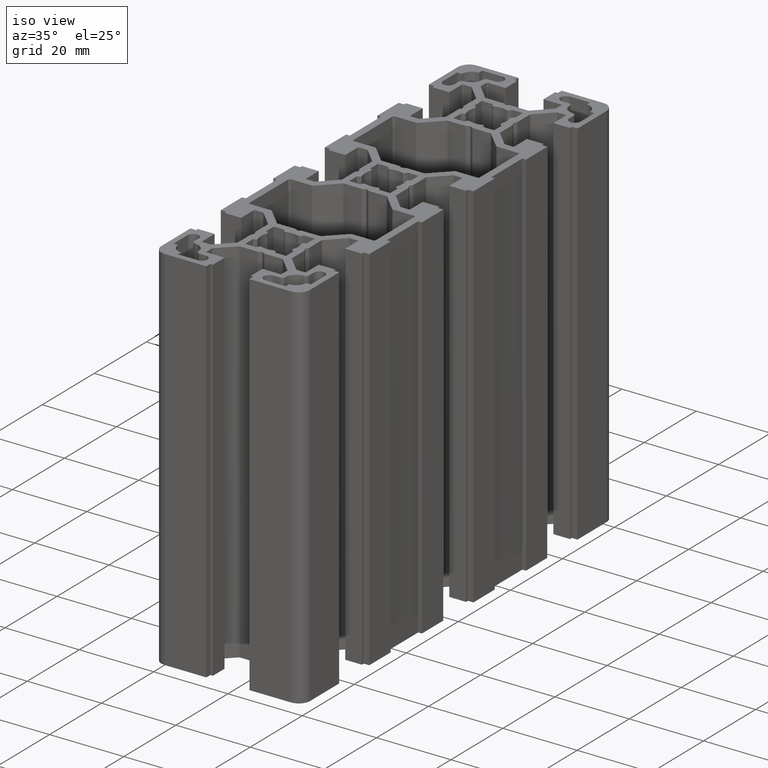
[diagram: clean part render]
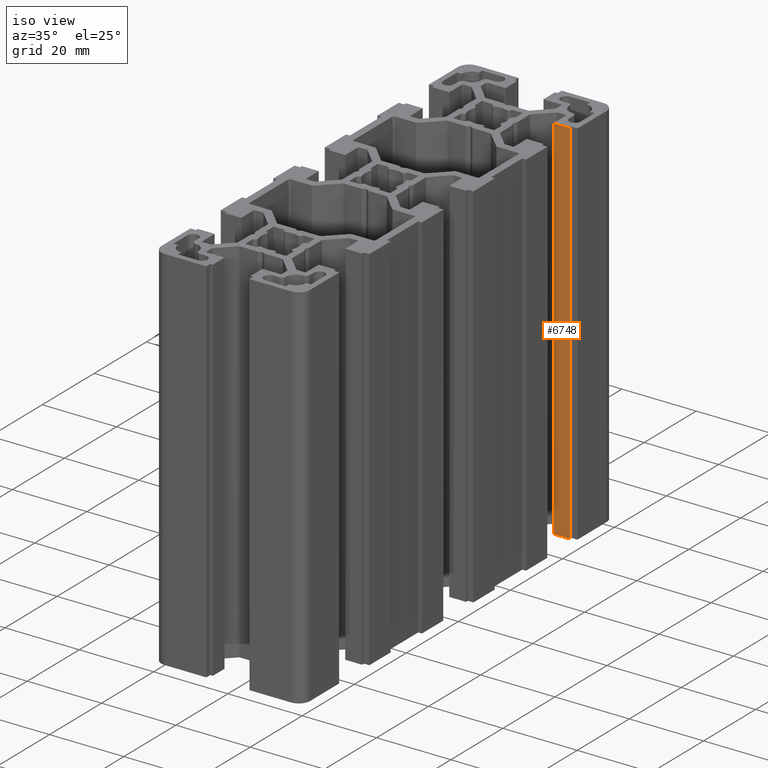
[diagram: same view with one face highlighted and labeled with its STEP entity id]
A machine part, iso view. The second image highlights one B-rep face of the part: STEP entity #6748.
In plain terms, the highlighted planar face has unit normal (0, 1, -0).
Its self-contained STEP definition (entity closure, byte-faithful):
#899 = DIRECTION ( 'NONE',  ( -0.0000000000000000000, -0.0000000000000000000, -1.000000000000000000 ) ) ;
#900 = VECTOR ( 'NONE', #899, 1000.000000000000000 ) ;
#901 = CARTESIAN_POINT ( 'NONE',  ( 14.00000000000000000, 45.10000000000000900, 100.0000000000000000 ) ) ;
#902 = LINE ( 'NONE', #901, #900 ) ;
#942 = DIRECTION ( 'NONE',  ( -1.000000000000000000, 1.541976423090495600E-015, 0.0000000000000000000 ) ) ;
#943 = DIRECTION ( 'NONE',  ( 1.541976423090495600E-015, 1.000000000000000000, -0.0000000000000000000 ) ) ;
#945 = PLANE ( 'NONE',  #961 ) ;
#946 = DIRECTION ( 'NONE',  ( -0.0000000000000000000, -0.0000000000000000000, -1.000000000000000000 ) ) ;
#947 = VECTOR ( 'NONE', #946, 1000.000000000000000 ) ;
#948 = CARTESIAN_POINT ( 'NONE',  ( 18.50000000000000000, 45.10000000000000100, 100.0000000000000000 ) ) ;
#953 = LINE ( 'NONE', #948, #947 ) ;
#954 = CARTESIAN_POINT ( 'NONE',  ( 14.00000000000000000, 45.10000000000000900, 100.0000000000000000 ) ) ;
#961 = AXIS2_PLACEMENT_3D ( 'NONE', #954, #943, #942 ) ;
#963 = FACE_OUTER_BOUND ( 'NONE', #6696, .T. ) ;
#3565 = CARTESIAN_POINT ( 'NONE',  ( 14.00000000000000000, 45.10000000000000900, 100.0000000000000000 ) ) ;
#3637 = CARTESIAN_POINT ( 'NONE',  ( 18.50000000000000000, 45.10000000000000100, 100.0000000000000000 ) ) ;
#3670 = DIRECTION ( 'NONE',  ( 1.000000000000000000, -1.541976423090495600E-015, 0.0000000000000000000 ) ) ;
#3671 = VECTOR ( 'NONE', #3670, 1000.000000000000000 ) ;
#3672 = CARTESIAN_POINT ( 'NONE',  ( 14.00000000000000000, 45.10000000000000900, 100.0000000000000000 ) ) ;
#3679 = LINE ( 'NONE', #3672, #3671 ) ;
#4787 = EDGE_CURVE ( 'NONE', #4796, #4802, #10006, .T. ) ;
#4796 = VERTEX_POINT ( 'NONE', #10035 ) ;
#4802 = VERTEX_POINT ( 'NONE', #10017 ) ;
#6696 = EDGE_LOOP ( 'NONE', ( #6750, #6747, #6753, #6752 ) ) ;
#6699 = EDGE_CURVE ( 'NONE', #12451, #4796, #902, .T. ) ;
#6746 = EDGE_CURVE ( 'NONE', #12516, #4802, #953, .T. ) ;
#6747 = ORIENTED_EDGE ( 'NONE', *, *, #6746, .F. ) ;
#6748 = ADVANCED_FACE ( 'NONE', ( #963 ), #945, .F. ) ;
#6750 = ORIENTED_EDGE ( 'NONE', *, *, #4787, .T. ) ;
#6752 = ORIENTED_EDGE ( 'NONE', *, *, #6699, .T. ) ;
#6753 = ORIENTED_EDGE ( 'NONE', *, *, #12521, .F. ) ;
#9982 = DIRECTION ( 'NONE',  ( 1.000000000000000000, -1.541976423090495600E-015, 0.0000000000000000000 ) ) ;
#9983 = VECTOR ( 'NONE', #9982, 1000.000000000000000 ) ;
#9985 = CARTESIAN_POINT ( 'NONE',  ( 14.00000000000000000, 45.10000000000000900, 0.0000000000000000000 ) ) ;
#10006 = LINE ( 'NONE', #9985, #9983 ) ;
#10017 = CARTESIAN_POINT ( 'NONE',  ( 18.50000000000000000, 45.10000000000000100, 0.0000000000000000000 ) ) ;
#10035 = CARTESIAN_POINT ( 'NONE',  ( 14.00000000000000000, 45.10000000000000900, 0.0000000000000000000 ) ) ;
#12451 = VERTEX_POINT ( 'NONE', #3565 ) ;
#12516 = VERTEX_POINT ( 'NONE', #3637 ) ;
#12521 = EDGE_CURVE ( 'NONE', #12451, #12516, #3679, .T. ) ;